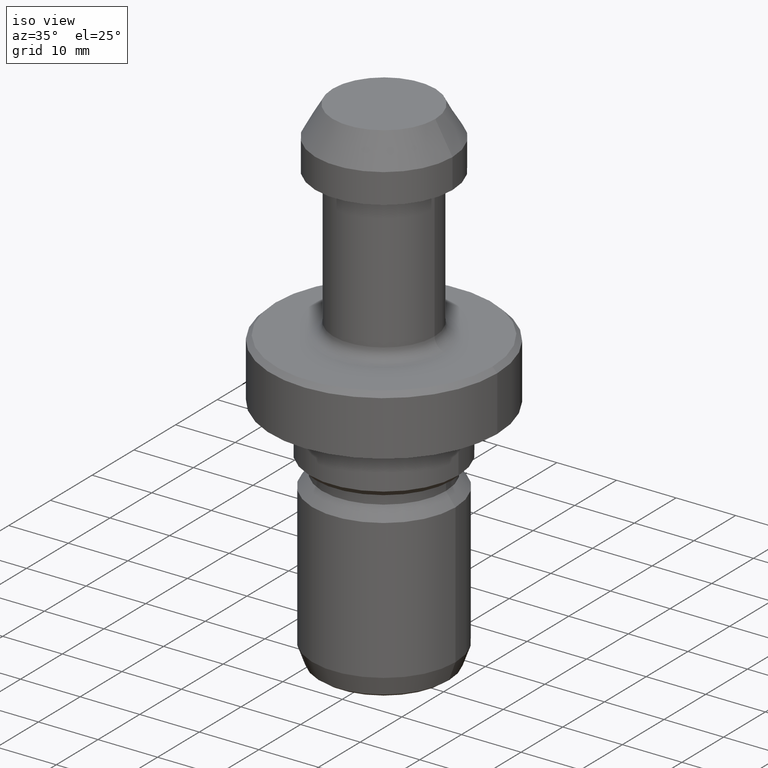
[diagram: clean part render]
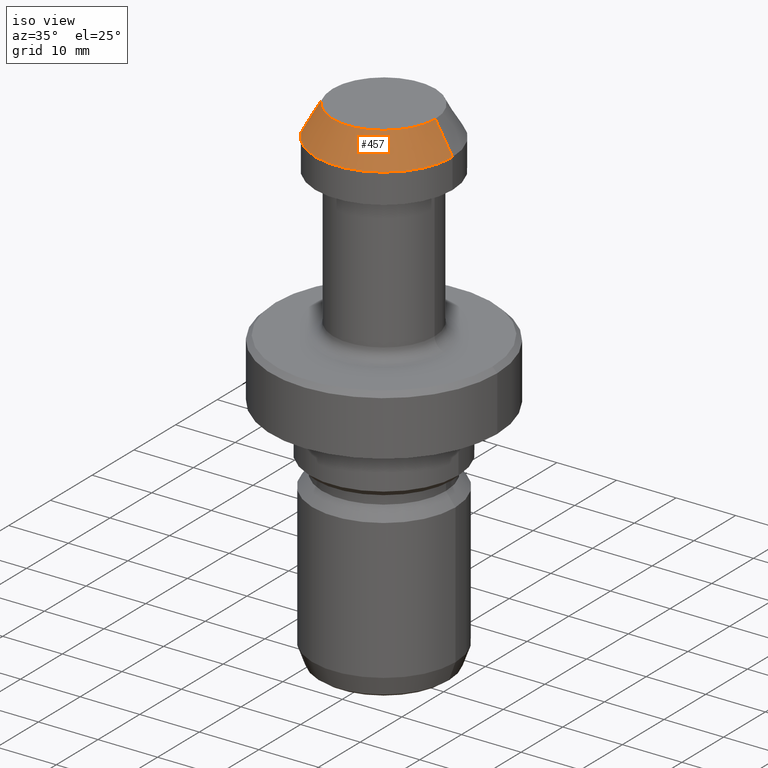
[diagram: same view with one face highlighted and labeled with its STEP entity id]
A machine part, iso view. The second image highlights one B-rep face of the part: STEP entity #457.
In plain terms, the highlighted conical surface has half-angle 30 deg.
Its self-contained STEP definition (entity closure, byte-faithful):
#57 = CARTESIAN_POINT ( 'NONE',  ( -8.613248654051886900, 0.0000000000000000000, 0.0000000000000000000 ) ) ;
#142 = DIRECTION ( 'NONE',  ( 0.0000000000000000000, 0.0000000000000000000, -1.000000000000000000 ) ) ;
#154 = CARTESIAN_POINT ( 'NONE',  ( -11.50000000000000000, 0.0000000000000000000, -4.999999999999999100 ) ) ;
#163 = CARTESIAN_POINT ( 'NONE',  ( 0.0000000000000000000, 0.0000000000000000000, -4.999999999999999100 ) ) ;
#193 = AXIS2_PLACEMENT_3D ( 'NONE', #804, #268, #886 ) ;
#205 = CARTESIAN_POINT ( 'NONE',  ( 11.50000000000000000, 1.408343819019456200E-015, -4.999999999999999100 ) ) ;
#216 = VERTEX_POINT ( 'NONE', #594 ) ;
#226 = CARTESIAN_POINT ( 'NONE',  ( 0.0000000000000000000, 0.0000000000000000000, -4.999999999999999100 ) ) ;
#245 = DIRECTION ( 'NONE',  ( 1.000000000000000000, 0.0000000000000000000, 0.0000000000000000000 ) ) ;
#266 = VERTEX_POINT ( 'NONE', #1060 ) ;
#268 = DIRECTION ( 'NONE',  ( -0.0000000000000000000, -0.0000000000000000000, 1.000000000000000000 ) ) ;
#284 = ORIENTED_EDGE ( 'NONE', *, *, #369, .F. ) ;
#287 = FACE_OUTER_BOUND ( 'NONE', #1014, .T. ) ;
#369 = EDGE_CURVE ( 'NONE', #588, #266, #448, .T. ) ;
#392 = CIRCLE ( 'NONE', #193, 8.613248654051886900 ) ;
#448 = LINE ( 'NONE', #205, #869 ) ;
#457 = ADVANCED_FACE ( 'NONE', ( #287 ), #712, .T. ) ;
#541 = VECTOR ( 'NONE', #947, 1000.000000000000000 ) ;
#551 = ORIENTED_EDGE ( 'NONE', *, *, #888, .T. ) ;
#562 = CARTESIAN_POINT ( 'NONE',  ( 8.613248654051886900, 1.231581279231972700E-015, 0.0000000000000000000 ) ) ;
#576 = ORIENTED_EDGE ( 'NONE', *, *, #996, .T. ) ;
#588 = VERTEX_POINT ( 'NONE', #562 ) ;
#594 = CARTESIAN_POINT ( 'NONE',  ( -11.50000000000000000, 1.408343819019456200E-015, -4.999999999999999100 ) ) ;
#613 = ORIENTED_EDGE ( 'NONE', *, *, #1093, .F. ) ;
#712 = CONICAL_SURFACE ( 'NONE', #911, 11.50000000000000000, 0.5235987755982967100 ) ;
#741 = DIRECTION ( 'NONE',  ( 0.4999999999999981100, 6.123233995736742600E-017, -0.8660254037844397100 ) ) ;
#764 = LINE ( 'NONE', #154, #541 ) ;
#791 = DIRECTION ( 'NONE',  ( -0.0000000000000000000, -0.0000000000000000000, 1.000000000000000000 ) ) ;
#804 = CARTESIAN_POINT ( 'NONE',  ( 0.0000000000000000000, 0.0000000000000000000, 0.0000000000000000000 ) ) ;
#824 = VERTEX_POINT ( 'NONE', #57 ) ;
#846 = AXIS2_PLACEMENT_3D ( 'NONE', #163, #791, #245 ) ;
#869 = VECTOR ( 'NONE', #741, 1000.000000000000000 ) ;
#886 = DIRECTION ( 'NONE',  ( 1.000000000000000000, 0.0000000000000000000, 0.0000000000000000000 ) ) ;
#888 = EDGE_CURVE ( 'NONE', #216, #266, #1005, .T. ) ;
#911 = AXIS2_PLACEMENT_3D ( 'NONE', #226, #142, #1030 ) ;
#947 = DIRECTION ( 'NONE',  ( -0.4999999999999981100, 0.0000000000000000000, -0.8660254037844397100 ) ) ;
#996 = EDGE_CURVE ( 'NONE', #824, #216, #764, .T. ) ;
#1005 = CIRCLE ( 'NONE', #846, 11.50000000000000000 ) ;
#1014 = EDGE_LOOP ( 'NONE', ( #284, #613, #576, #551 ) ) ;
#1030 = DIRECTION ( 'NONE',  ( -1.000000000000000000, 0.0000000000000000000, 0.0000000000000000000 ) ) ;
#1060 = CARTESIAN_POINT ( 'NONE',  ( 11.50000000000000000, 0.0000000000000000000, -4.999999999999999100 ) ) ;
#1093 = EDGE_CURVE ( 'NONE', #824, #588, #392, .T. ) ;